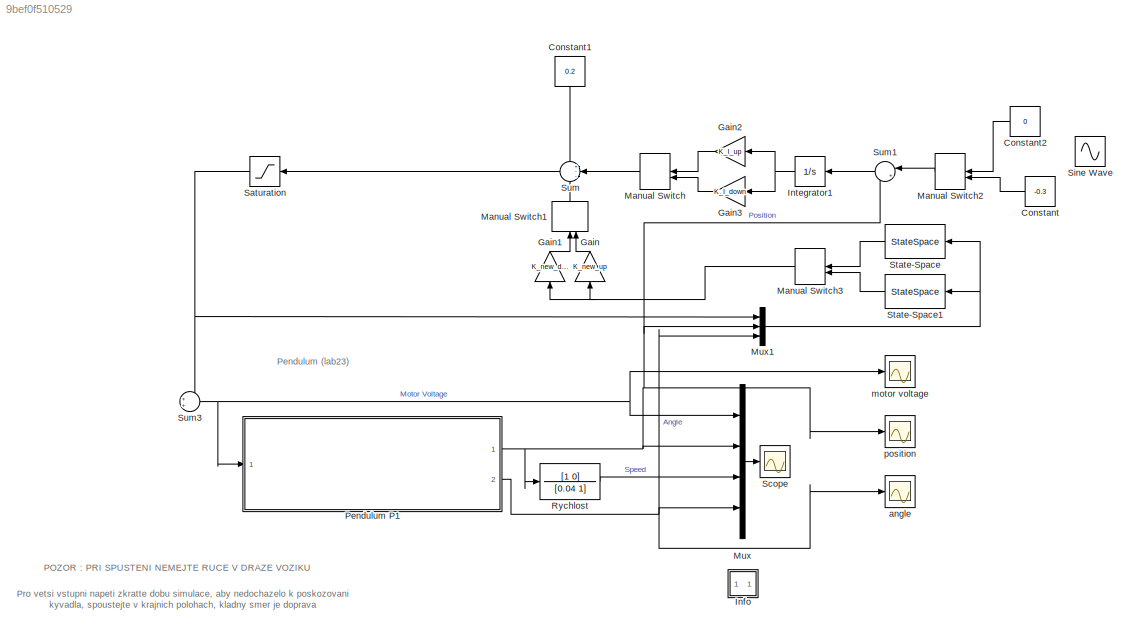
MODEL slx_9bef0f510529
KIND model
CONFIG AbsTol = auto
CONFIG EnableMultiTasking = on
CONFIG FixedStep = auto
CONFIG MaxStep = 0.001
CONFIG MinStep = auto
CONFIG RelTol = 1e-3
CONFIG SampleTimeConstraint = Unconstrained
CONFIG SolverName = ode5
CONFIG StartTime = 0.0
CONFIG StopTime = 40
BLOCK [Constant] Constant
  NameLocation = top
  Value = -0.3
BLOCK [Constant] Constant1
  NameLocation = left
  Value = 0.2
BLOCK [Constant] Constant2
  NameLocation = top
  Value = 0
BLOCK [Gain] Gain
  Gain = K_new_up
  Multiplication = Matrix(K*u)
  NameLocation = right
BLOCK [Gain] Gain1
  Gain = K_new_down
  Multiplication = Matrix(K*u)
  NameLocation = right
BLOCK [Gain] Gain2
  Gain = K_I_up
  NameLocation = top
BLOCK [Gain] Gain3
  Gain = K_I_down
  NameLocation = top
BLOCK [SubSystem] Info
  Ports = []
  RequestExecContextInheritance = off
BLOCK [Integrator] Integrator1
  NameLocation = top
  Ports = [1, 1]
BLOCK [ManualSwitch] Manual Switch
  NameLocation = top
BLOCK [ManualSwitch] Manual Switch1
  CurrentSetting = 0
  NameLocation = right
BLOCK [ManualSwitch] Manual Switch2
  NameLocation = top
BLOCK [ManualSwitch] Manual Switch3
  NameLocation = top
BLOCK [Mux] Mux
  DisplayOption = bar
  Ports = [4, 1]
BLOCK [Mux] Mux1
  DisplayOption = bar
  Inputs = 3
  Ports = [3, 1]
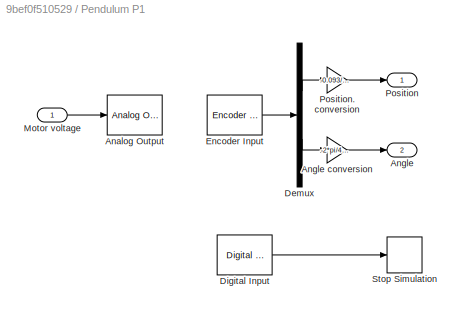
BLOCK [SubSystem] Pendulum P1
  InitFcn = warning off;
  Ports = [1, 2]
  RequestExecContextInheritance = off
BLOCK [Reference] Pendulum P1/Analog Output  REF=sldrtlib/Analog Output
  AttributesFormatString = Humusoft\nMF624 [auto]
  Ports = [1]
  SourceBlock = sldrtlib/Analog Output
  SourceProductBaseCode = WT
  SourceType = Simulink Desktop Real-Time Analog Output
BLOCK [Outport] Pendulum P1/Angle
  Port = 2
BLOCK [Gain] Pendulum P1/Angle conversion
  Gain = -2*pi/4096
BLOCK [Demux] Pendulum P1/Demux
  DisplayOption = none
  Outputs = 2
  Ports = [1, 2]
BLOCK [Reference] Pendulum P1/Digital Input  REF=sldrtlib/Digital Input
  AttributesFormatString = Humusoft\nMF624 [auto]
  Ports = [0, 1]
  SourceBlock = sldrtlib/Digital Input
  SourceProductBaseCode = WT
  SourceType = Simulink Desktop Real-Time Digital Input
BLOCK [Reference] Pendulum P1/Encoder Input  REF=sldrtlib/Encoder Input
  AttributesFormatString = Humusoft\nMF624 [auto]
  Ports = [0, 1]
  SourceBlock = sldrtlib/Encoder Input
  SourceProductBaseCode = WT
  SourceType = Simulink Desktop Real-Time Encoder Input
BLOCK [Inport] Pendulum P1/Motor voltage
BLOCK [Outport] Pendulum P1/Position
BLOCK [Gain] Pendulum P1/Position. conversion
  Gain = -0.093/4096
BLOCK [Stop] Pendulum P1/Stop Simulation
BLOCK [TransferFcn] Rychlost
  Denominator = [0.04 1]
  Numerator = [1 0]
BLOCK [Saturate] Saturation
  LowerLimit = -1
  NameLocation = top
  UpperLimit = 1
BLOCK [Scope] Scope
  Floating = off
  NumInputPorts = 1
  Ports = [1]
  ScopeSpecificationString = Simulink.scopes.TimeScopeBlockCfg('CurrentConfiguration', extmgr.ConfigurationSet(extmgr.Configuration('Core','General UI',true,'FigureColor',[0.501960784313725 0.501960784313725 0.501960784313725]),extmgr.Configuration('Core','Source UI',true),extmgr.Configuration('Sources','WiredSimulink',true,'DataLogging',true,'DataLoggingVariableName','data','DataLoggingMaxPoints','500000','DataLoggingLimitDa...<+2842ch>
BLOCK [Sin] Sine Wave
  Amplitude = 0.2
  Frequency = 0.5
  NameLocation = top
  Ports = [0, 1]
  SampleTime = 0
BLOCK [StateSpace] State-Space
  A = A_up-L_up*C
  B = [B_up, L_up]
  C = eye(4)
  D = zeros(4,3)
  InitialCondition = 0
  NameLocation = top
  Ports = [1, 1]
BLOCK [StateSpace] State-Space1
  A = A_down-L_down*C
  B = [B_down, L_down]
  C = eye(4)
  D = zeros(4,3)
  InitialCondition = 0
  NameLocation = top
  Ports = [1, 1]
BLOCK [Sum] Sum
  Inputs = +--
  NameLocation = top
  Ports = [3, 1]
BLOCK [Sum] Sum1
  Inputs = |+-
  NameLocation = top
  Ports = [2, 1]
BLOCK [Sum] Sum3
  Inputs = ++|
  Ports = [2, 1]
BLOCK [Scope] angle
  Floating = off
  NumInputPorts = 1
  Ports = [1]
  ScopeSpecificationString = Simulink.scopes.TimeScopeBlockCfg('CurrentConfiguration', extmgr.ConfigurationSet(extmgr.Configuration('Core','General UI',true),extmgr.Configuration('Core','Source UI',true),extmgr.Configuration('Sources','WiredSimulink',true,'DataLoggingVariableName','ScopeData2'),extmgr.Configuration('Visuals','Time Domain',true,'SerializedDisplays',{struct('MinYLimReal','-0.55779','MaxYLimReal','0.52558','YLab...<+1434ch>
BLOCK [Scope] motor voltage
  Floating = off
  NumInputPorts = 1
  Ports = [1]
  ScopeSpecificationString = Simulink.scopes.TimeScopeBlockCfg('CurrentConfiguration', extmgr.ConfigurationSet(extmgr.Configuration('Core','General UI',true),extmgr.Configuration('Core','Source UI',true),extmgr.Configuration('Sources','WiredSimulink',true,'DataLoggingVariableName','ScopeData3'),extmgr.Configuration('Visuals','Time Domain',true,'SerializedDisplays',{struct('MinYLimReal','-1.25','MaxYLimReal','1.25','YLabelReal...<+1425ch>
BLOCK [Scope] position
  Floating = off
  NumInputPorts = 1
  Ports = [1]
  ScopeSpecificationString = Simulink.scopes.TimeScopeBlockCfg('CurrentConfiguration', extmgr.ConfigurationSet(extmgr.Configuration('Core','General UI',true),extmgr.Configuration('Core','Source UI',true),extmgr.Configuration('Sources','WiredSimulink',true,'DataLoggingVariableName','ScopeData1'),extmgr.Configuration('Visuals','Time Domain',true,'SerializedDisplays',{struct('MinYLimReal','-0.03979','MaxYLimReal','0.02296','YLab...<+1395ch>
ANNOTATION (root): POZOR : PRI SPUSTENI NEMEJTE RUCE V DRAZE VOZIKU
ANNOTATION (root): Pendulum (lab23)
ANNOTATION (root): Pro vetsi vstupni napeti zkratte dobu simulace, aby nedochazelo k poskozovani kyvadla, spoustejte v krajnich polohach, kladny smer je doprava
ANNOTATION Info: C: J.Fuka 2007-2015 pro Matlab 2014b s RTWT
ANNOTATION Info: Kyvadlo P1 (lab. 23)
ANNOTATION Info: Merena data jsou ukladana po radcich do matice ty v pracovnim prostoru Matlabu. Prvni sloupec matice ty predstavuje cas a dalsi pak jednotlive promenne v poradi vstupu do bloku multiplexoru osciloskopu. Krome toho je jeste k dispozici samotny vektor casu tout. Prubehy velicin zobrazite napr. prikazem: plot(ty(:,1),ty(:,2:4)).
ANNOTATION Info: Nezapomente si ulozit namerena data napr. prikazem: save ty
ANNOTATION Info: Umisteni voziku
ANNOTATION Info: Urceno pro mereni prechodovych charakteristik realneho systemu inverzni kyvadlo. Periodu vzorkovani Ts volte v rozsahu 0.0005 s < Ts < 0.001 s (dop. Ts = 0.001 s).
ANNOTATION Info: Ve formatu ASCII je pak ulozite prikazem: save ty -ascii
ANNOTATION Info: Vozik presunte do leve krajni polohy. Po spusteni simulace dojede k prave krajni poloze. Presunte jej ke koncovemu spinaci a zmente znamenko zesileni. Vozik se vrati do vychozi polohy. Pri vetsim vstupnim napeti zkratte dobu simulace!!!
LINE Constant1:1 -> Sum:1
LINE Constant2:1 -> Manual Switch2:1
LINE Constant:1 -> Manual Switch2:2
LINE Gain1:1 -> Manual Switch1:1
LINE Gain2:1 -> Manual Switch:1
LINE Gain3:1 -> Manual Switch:2
LINE Gain:1 -> Manual Switch1:2
NET Integrator1:1 -> Gain2:1, Gain3:1
LINE Manual Switch1:1 -> Sum:3
LINE Manual Switch2:1 -> Sum1:1
NET Manual Switch3:1 -> Gain1:1, Gain:1
LINE Manual Switch:1 -> Sum:2
NET Mux1:1 -> State-Space1:1, State-Space:1
LINE Mux:1 -> Scope:1
LINE Pendulum P1/Angle conversion:1 -> Pendulum P1/Angle:1
LINE Pendulum P1/Demux:1 -> Pendulum P1/Position. conversion:1
LINE Pendulum P1/Demux:2 -> Pendulum P1/Angle conversion:1
LINE Pendulum P1/Digital Input:1 -> Pendulum P1/Stop Simulation:1
LINE Pendulum P1/Encoder Input:1 -> Pendulum P1/Demux:1
LINE Pendulum P1/Motor voltage:1 -> Pendulum P1/Analog Output:1
LINE Pendulum P1/Position. conversion:1 -> Pendulum P1/Position:1
NET Pendulum P1:1 -> Mux1:2, Mux:2, Rychlost:1, Sum1:2, position:1
NET Pendulum P1:2 -> Mux1:3, Mux:4, angle:1
LINE Rychlost:1 -> Mux:3
NET Saturation:1 -> Mux1:1, Sum3:1
LINE State-Space1:1 -> Manual Switch3:2
LINE State-Space:1 -> Manual Switch3:1
LINE Sum1:1 -> Integrator1:1
NET Sum3:1 -> Mux:1, Pendulum P1:1, motor voltage:1
LINE Sum:1 -> Saturation:1
note: NET lines group one-source signal fan-out (src -> all destinations, sorted); 1:1 wires keep LINE
